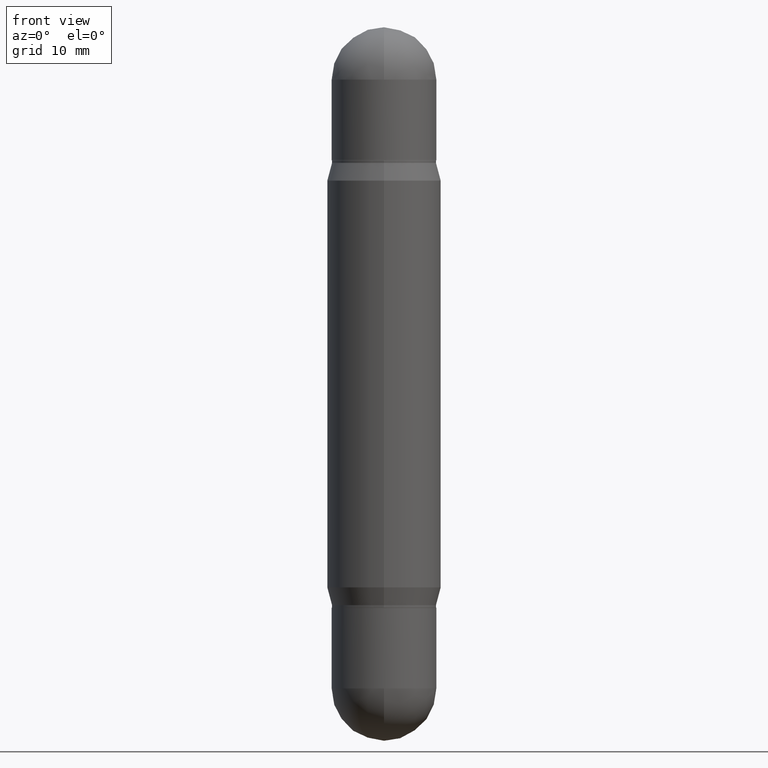
[diagram: clean part render]
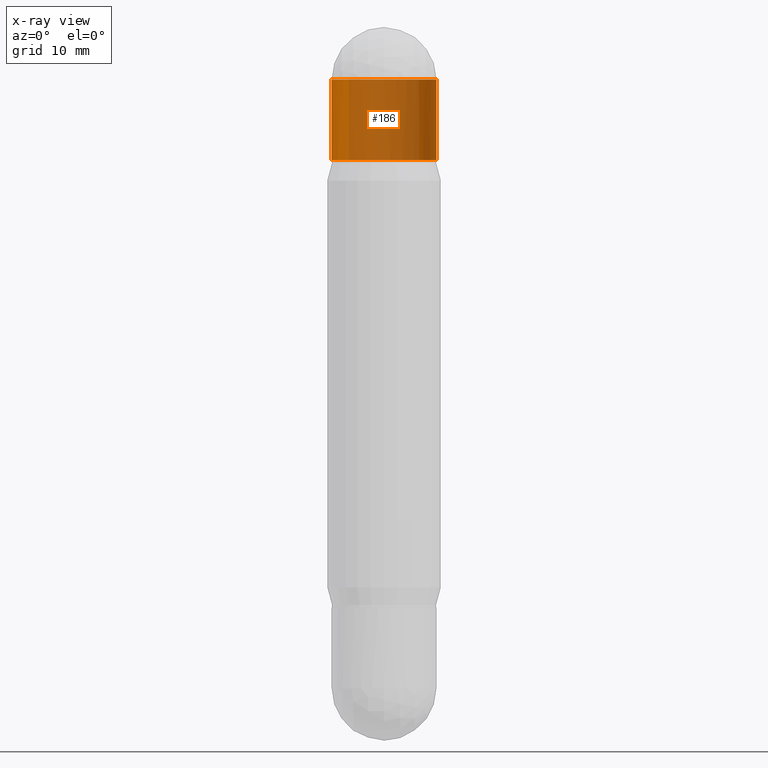
[diagram: x-ray — body ghosted, one internal face saturated and labeled with its STEP entity id]
A machine part, front view, then the same camera in x-ray: the body is ghosted and one INTERNAL B-rep face — a face not visible from any outside direction — is saturated and labeled: STEP entity #186.
In plain terms, the highlighted cylindrical surface (partial cylindrical patch) has radius 5.5004 mm, axis along (-0, -0, -1).
Its self-contained STEP definition (entity closure, byte-faithful):
#17 = DIRECTION ( 'NONE',  ( 1.000000000000000000, -6.982962677686265922E-15, 0.000000000000000000 ) ) ;
#58 = VERTEX_POINT ( 'NONE', #414 ) ;
#100 = CYLINDRICAL_SURFACE ( 'NONE', #781, 0.2165500000000001035 ) ;
#108 = VERTEX_POINT ( 'NONE', #255 ) ;
#120 = AXIS2_PLACEMENT_3D ( 'NONE', #522, #432, #439 ) ;
#170 = LINE ( 'NONE', #872, #653 ) ;
#186 = ADVANCED_FACE ( 'NONE', ( #373 ), #100, .T. ) ;
#201 = DIRECTION ( 'NONE',  ( -2.445468806185136877E-29, -3.479614466977828648E-15, -1.000000000000000000 ) ) ;
#255 = CARTESIAN_POINT ( 'NONE',  ( 1.512160567853029651E-15, 0.2165499999999994929, -0.2165500000000009362 ) ) ;
#281 = CARTESIAN_POINT ( 'NONE',  ( 6.691414020924079206E-29, -7.710307624460063053E-16, -0.2165500000000001868 ) ) ;
#295 = CARTESIAN_POINT ( 'NONE',  ( -0.2165500000000000758, 1.323835882843561036E-16, -0.5512000000000001343 ) ) ;
#334 = AXIS2_PLACEMENT_3D ( 'NONE', #388, #381, #736 ) ;
#368 = VECTOR ( 'NONE', #844, 39.37007874015748143 ) ;
#373 = FACE_OUTER_BOUND ( 'NONE', #794, .T. ) ;
#377 = DIRECTION ( 'NONE',  ( 2.445468806185136597E-29, 3.479614466977828254E-15, 1.000000000000000000 ) ) ;
#381 = DIRECTION ( 'NONE',  ( 2.445468806185136597E-29, 3.479614466977828254E-15, 1.000000000000000000 ) ) ;
#388 = CARTESIAN_POINT ( 'NONE',  ( 6.691414020924079206E-29, -7.710307624460063053E-16, -0.2165500000000001868 ) ) ;
#406 = ORIENTED_EDGE ( 'NONE', *, *, #448, .T. ) ;
#409 = ORIENTED_EDGE ( 'NONE', *, *, #645, .F. ) ;
#414 = CARTESIAN_POINT ( 'NONE',  ( -0.2165500000000001035, 1.323835882843576813E-16, -0.2165500000000001868 ) ) ;
#432 = DIRECTION ( 'NONE',  ( 2.445468806185136597E-29, 3.479614466977828254E-15, 1.000000000000000000 ) ) ;
#439 = DIRECTION ( 'NONE',  ( 1.000000000000000000, -6.982962677686266711E-15, 0.000000000000000000 ) ) ;
#448 = EDGE_CURVE ( 'NONE', #502, #820, #563, .T. ) ;
#476 = EDGE_CURVE ( 'NONE', #991, #502, #851, .T. ) ;
#502 = VERTEX_POINT ( 'NONE', #1104 ) ;
#522 = CARTESIAN_POINT ( 'NONE',  ( 5.873037884934223228E-29, -1.935483743820134825E-15, -0.5512000000000001343 ) ) ;
#528 = DIRECTION ( 'NONE',  ( -2.445468806185136597E-29, -3.479614466977828254E-15, -1.000000000000000000 ) ) ;
#540 = EDGE_CURVE ( 'NONE', #58, #820, #170, .T. ) ;
#563 = CIRCLE ( 'NONE', #120, 0.2165500000000000758 ) ;
#575 = ORIENTED_EDGE ( 'NONE', *, *, #852, .F. ) ;
#645 = EDGE_CURVE ( 'NONE', #108, #58, #782, .T. ) ;
#653 = VECTOR ( 'NONE', #201, 39.37007874015748143 ) ;
#715 = CARTESIAN_POINT ( 'NONE',  ( 0.000000000000000000, -1.029212584771408642E-14, -2.952799999999999869 ) ) ;
#736 = DIRECTION ( 'NONE',  ( 1.000000000000000000, -6.982962677686265922E-15, 0.000000000000000000 ) ) ;
#781 = AXIS2_PLACEMENT_3D ( 'NONE', #715, #528, #959 ) ;
#782 = CIRCLE ( 'NONE', #940, 0.2165500000000001035 ) ;
#794 = EDGE_LOOP ( 'NONE', ( #906, #409, #575, #875, #406 ) ) ;
#813 = CIRCLE ( 'NONE', #334, 0.2165500000000001035 ) ;
#820 = VERTEX_POINT ( 'NONE', #295 ) ;
#838 = CARTESIAN_POINT ( 'NONE',  ( 0.2165500000000001035, -2.865417820986029909E-15, -0.2165500000000001868 ) ) ;
#839 = CARTESIAN_POINT ( 'NONE',  ( 0.2165500000000001035, -1.180428641556704882E-14, -2.952799999999999869 ) ) ;
#844 = DIRECTION ( 'NONE',  ( -2.445468806185136877E-29, -3.479614466977828648E-15, -1.000000000000000000 ) ) ;
#851 = LINE ( 'NONE', #839, #368 ) ;
#852 = EDGE_CURVE ( 'NONE', #991, #108, #813, .T. ) ;
#872 = CARTESIAN_POINT ( 'NONE',  ( -0.2165500000000001035, -8.806485006296660292E-15, -2.952799999999999869 ) ) ;
#875 = ORIENTED_EDGE ( 'NONE', *, *, #476, .T. ) ;
#906 = ORIENTED_EDGE ( 'NONE', *, *, #540, .F. ) ;
#940 = AXIS2_PLACEMENT_3D ( 'NONE', #281, #377, #17 ) ;
#959 = DIRECTION ( 'NONE',  ( 1.000000000000000000, -6.982962677686270655E-15, 0.000000000000000000 ) ) ;
#991 = VERTEX_POINT ( 'NONE', #838 ) ;
#1104 = CARTESIAN_POINT ( 'NONE',  ( 0.2165500000000000758, -3.447644311673096437E-15, -0.5512000000000001343 ) ) ;